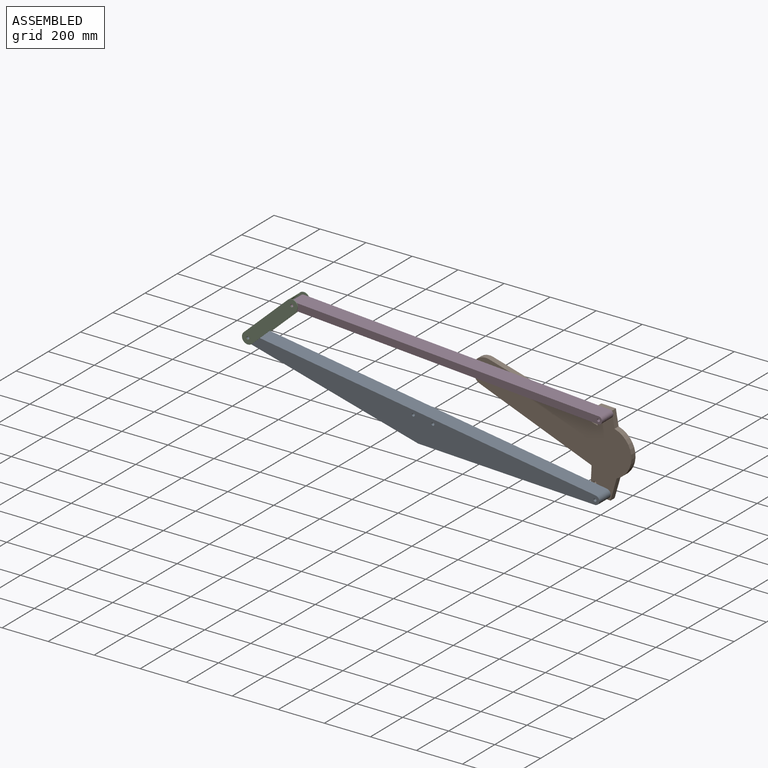
[diagram: assembled view]
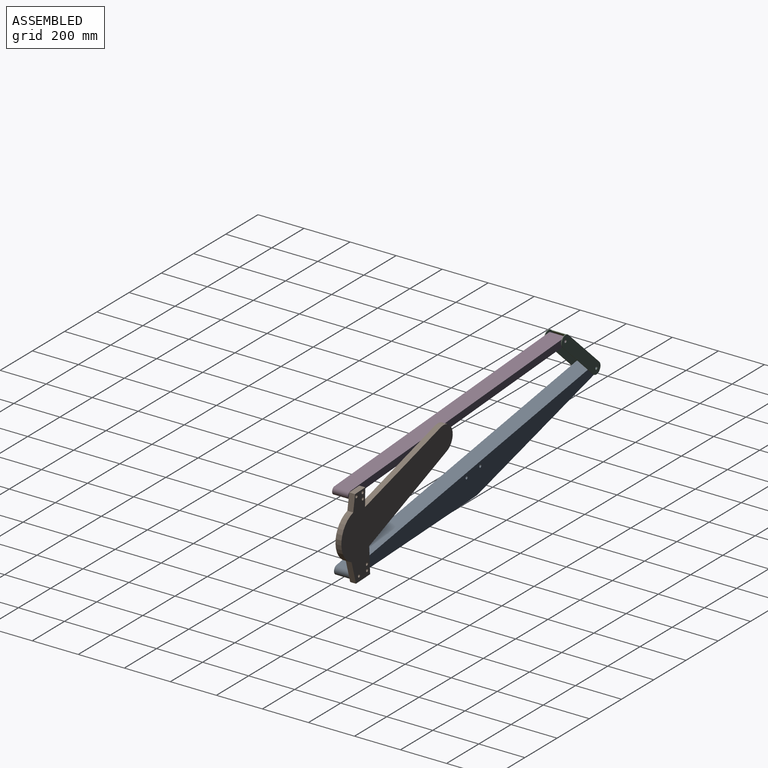
[diagram: assembled view, second angle]
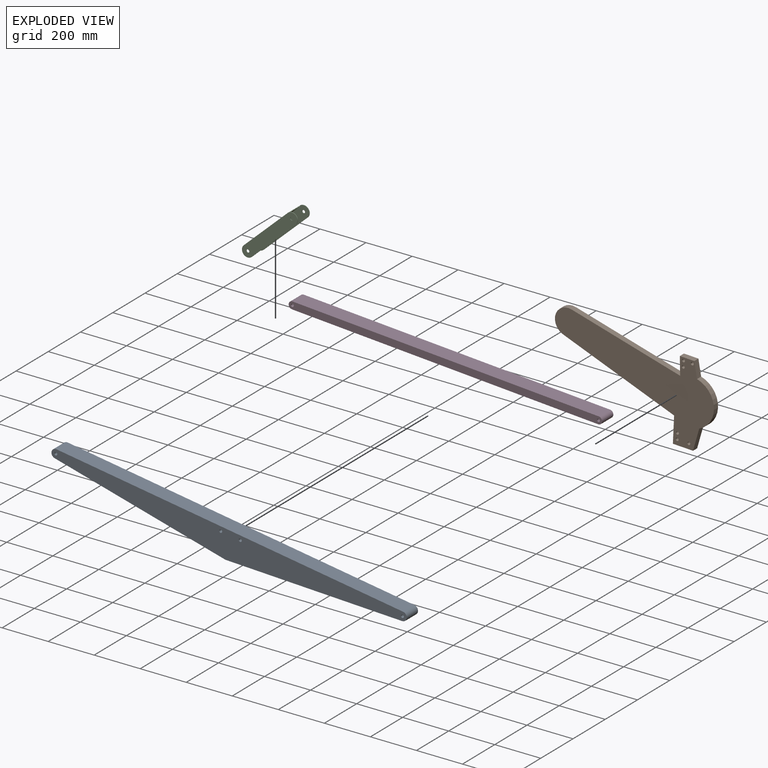
[diagram: exploded view]
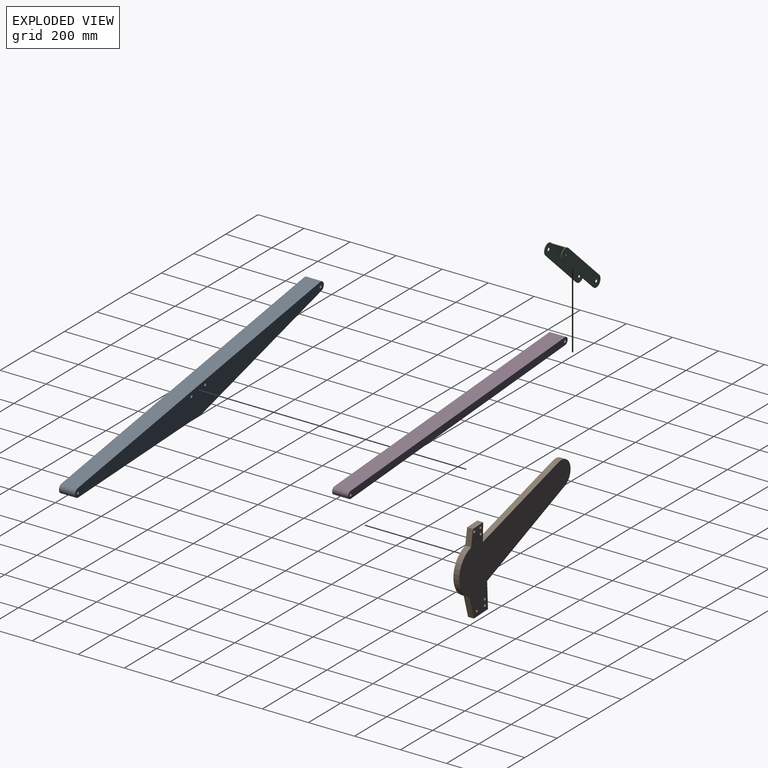
[diagram: exploded view, second angle]
ASSEMBLY  parts=4 mates=4
PART A: 11 faces, bbox 1562.1x69.9x121.4 mm
  f0: cylinder r=19.05mm len=69.85mm, axis (0,1,0), area 4180.3mm2, adj f1,f6,f9,f10
  f1: plane 762x83.28mm, normal (-0.11,0,-0.99), area 53542.6mm2, adj f0,f2,f9,f10
  f2: plane 764.07x83.39mm, normal (0.11,0,-0.99), area 53687mm2, adj f1,f3,f9,f10
  f3: cylinder r=19.05mm len=69.85mm, axis (0,1,0), area 4035.7mm2, adj f2,f6,f9,f10
  f4: cylinder r=6.35mm len=69.85mm, axis (0,1,0), area 2786.9mm2, adj f9,f10
  f5: cylinder r=6.35mm len=69.85mm, axis (0,1,0), area 2786.9mm2, adj f9,f10
  f6: plane 1524x69.85mm, normal (0,0,1), area 106451.4mm2, adj f0,f3,f9,f10
  f7: cylinder r=6.35mm len=69.85mm, axis (0,1,0), area 2786.9mm2, adj f9,f10
  f8: cylinder r=6.35mm len=69.85mm, axis (0,1,0), area 2786.9mm2, adj f9,f10
  f9: plane 1562.1x121.38mm, normal (0,-1,0), area 122199.7mm2, adj f0,f1,f2,f3,f4,f5,f6,f7
  f10: plane 1562.1x121.38mm, normal (0,1,0), area 122199.7mm2, adj f0,f1,f2,f3,f4,f5,f6,f7
PART B: 18 faces, bbox 698.5x25.4x389.7 mm
  f0: cylinder r=57.15mm len=112.68mm, axis (0,1,0), area 4562.6mm2, adj f1,f14,f16,f17
  f1: plane 485.17x164.49mm, normal (-0.32,0,-0.95), area 13012.2mm2, adj f0,f2,f16,f17
  f2: plane 112.56x25.4mm, normal (-1,0,0), area 2859mm2, adj f1,f3,f16,f17
  f3: plane 87.7x25.4mm, normal (0,0,-1), area 2227.5mm2, adj f2,f4,f16,f17
  f4: plane 95.51x25.4mm, normal (0.97,0,-0.23), area 2492.8mm2, adj f3,f5,f16,f17
  f5: cylinder r=101.6mm len=191.31mm, axis (0,1,0), area 6403.2mm2, adj f4,f6,f16,f17
  f6: plane 66.87x25.4mm, normal (0.98,0,0.22), area 1740.5mm2, adj f5,f7,f16,f17
  f7: plane 63.05x25.4mm, normal (0,0,1), area 1601.5mm2, adj f6,f8,f16,f17
  f8: plane 77.09x25.4mm, normal (-1,0,-0.06), area 1962.1mm2, adj f7,f14,f16,f17
  f9: cylinder r=6.35mm len=25.4mm, axis (0,1,0), area 1013.4mm2, adj f16,f17
  f10: cylinder r=6.35mm len=25.4mm, axis (0,1,0), area 1013.4mm2, adj f16,f17
  f11: cylinder r=6.35mm len=25.4mm, axis (0,1,0), area 1013.4mm2, adj f16,f17
  f12: cylinder r=6.35mm len=25.4mm, axis (0,1,0), area 1013.4mm2, adj f16,f17
  f13: cylinder r=6.35mm len=25.4mm, axis (0,1,0), area 1013.4mm2, adj f16,f17
  f14: plane 476.52x111.49mm, normal (0.23,0,0.97), area 12430.5mm2, adj f0,f8,f16,f17
  f15: cylinder r=6.35mm len=25.4mm, axis (0,1,0), area 1013.4mm2, adj f16,f17
  f16: plane 698.51x389.73mm, normal (0,-1,0), area 114921.9mm2, adj f0,f1,f2,f3,f4,f5,f6,f7
  f17: plane 698.51x389.73mm, normal (0,1,0), area 114921.9mm2, adj f0,f1,f2,f3,f4,f5,f6,f7
PART C: 18 faces, bbox 241.3x76.2x228.6 mm
  f0: cylinder r=6.35mm len=12.7mm, axis (0,1,0), area 101.3mm2, adj f12,f17
  f1: cylinder r=6.35mm len=12.7mm, axis (0,1,0), area 101.3mm2, adj f12,f17
  f2: cylinder r=25.4mm len=43.97mm, axis (0,1,0), area 202.7mm2, adj f3,f5,f12,f17
  f3: plane 190.14x177.45mm, normal (0.68,0,-0.73), area 660.6mm2, adj f2,f4,f12,f17
  f4: cylinder r=25.4mm len=45.52mm, axis (0,1,0), area 210.1mm2, adj f3,f5,f12,f17
  f5: plane 188.66x176.24mm, normal (-0.68,0,0.73), area 19672.6mm2, adj f2,f4,f6,f9,f11,f12,f13,f14
  f6: cylinder r=25.4mm len=45.52mm, axis (0,1,0), area 210.1mm2, adj f5,f7,f11,f16
  f7: plane 190.14x177.45mm, normal (0.68,0,-0.73), area 660.6mm2, adj f6,f9,f11,f16
  f8: cylinder r=6.35mm len=12.7mm, axis (0,1,0), area 101.3mm2, adj f11,f16
  f9: cylinder r=25.4mm len=43.97mm, axis (0,1,0), area 202.7mm2, adj f5,f7,f11,f16
  f10: cylinder r=6.35mm len=12.7mm, axis (0,1,0), area 101.3mm2, adj f11,f16
  f11: plane 241.3x228.6mm, normal (0,-1,0), area 14995.6mm2, adj f5,f6,f7,f8,f9,f10
  f12: plane 241.3x228.6mm, normal (0,1,0), area 14995.6mm2, adj f0,f1,f2,f3,f4,f5
  f13: cylinder r=25.4mm len=71.12mm, axis (0,1,0), area 661.5mm2, adj f5,f15,f16,f17
  f14: plane 71.12x1.86mm, normal (0.73,0,0.68), area 180.6mm2, adj f5,f15,f16,f17
  f15: plane 182.16x170.17mm, normal (0.68,0,-0.73), area 17728.6mm2, adj f13,f14,f16,f17
  f16: plane 241.3x228.6mm, normal (0,1,0), area 14353.8mm2, adj f6,f7,f8,f9,f10,f13,f14,f15
  f17: plane 241.3x228.6mm, normal (0,-1,0), area 14353.8mm2, adj f0,f1,f2,f3,f4,f13,f14,f15
PART D: 8 faces, bbox 1365.3x69.9x31.8 mm
  f0: cylinder r=15.88mm len=69.85mm, axis (0,1,0), area 3593.9mm2, adj f1,f4,f6,f7
  f1: plane 1330.35x69.85mm, normal (0,0,1), area 92924.7mm2, adj f0,f2,f6,f7
  f2: cylinder r=15.88mm len=69.85mm, axis (0,1,0), area 3593.9mm2, adj f1,f4,f6,f7
  f3: cylinder r=6.35mm len=69.85mm, axis (0,1,0), area 2786.9mm2, adj f6,f7
  f4: plane 1333.5x69.85mm, normal (0,0,-1), area 93145mm2, adj f0,f2,f6,f7
  f5: cylinder r=6.35mm len=69.85mm, axis (0,1,0), area 2786.9mm2, adj f6,f7
  f6: plane 1365.25x31.75mm, normal (0,-1,0), area 42772.5mm2, adj f0,f1,f2,f3,f4,f5
  f7: plane 1365.25x31.75mm, normal (0,1,0), area 42772.5mm2, adj f0,f1,f2,f3,f4,f5
PLACE A rot(axis=(0,1,0),8.9deg) t=(66.37,74.52,15.86)mm
PLACE B rot(axis=(0,1,0),2.7deg) t=(1579.93,99.92,-54.29)mm
PLACE C rot(axis=(0,1,0),0.1deg) t=(66.37,77.06,15.86)mm fixed
PLACE D rot(axis=(0,1,0),4.1deg) t=(53.7,74.52,29.69)mm
MATE revolute D.f0 <-> B.f13  axis (0,1,0) through (1587.13,74.52,97.94)mm
MATE revolute D.f2 <-> C.f0  axis (0,1,0) through (257.05,74.52,193.46)mm
MATE revolute B.f10 <-> A.f5  axis (0,-1,0) through (1572.14,74.52,-219.21)mm
MATE revolute A.f7 <-> C.f1  axis (0,1,0) through (66.37,74.52,15.86)mm
